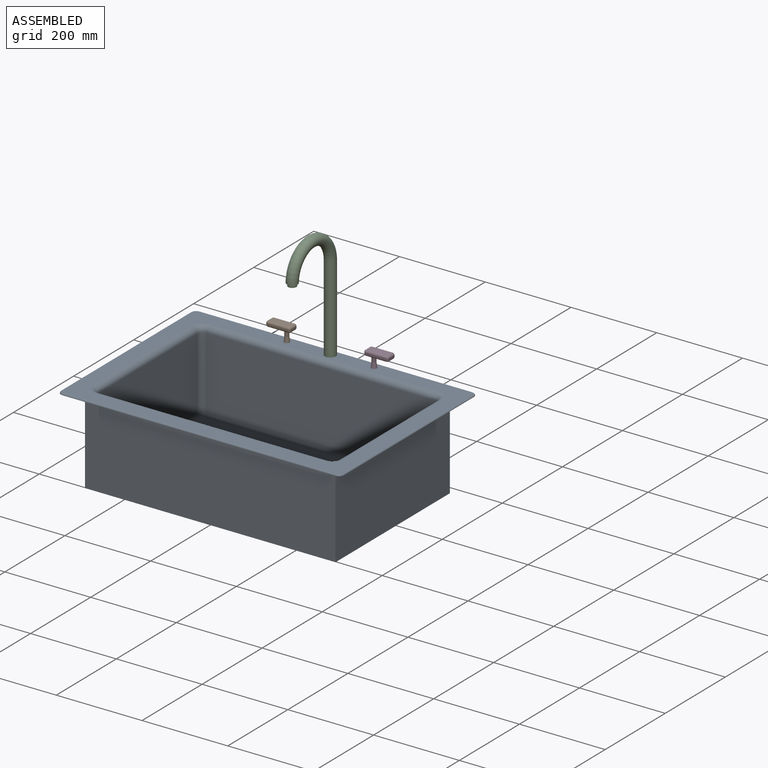
[diagram: assembled view]
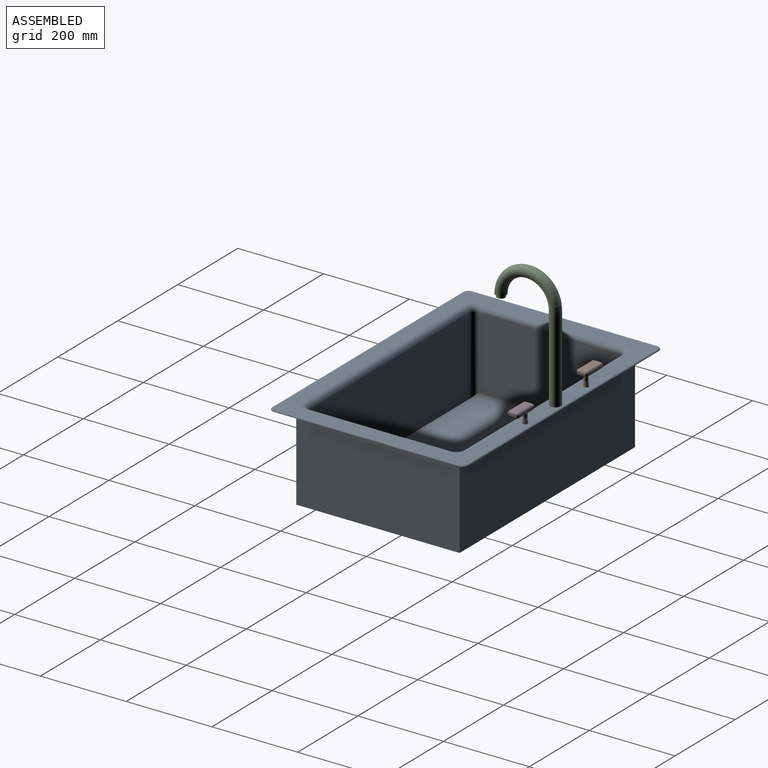
[diagram: assembled view, second angle]
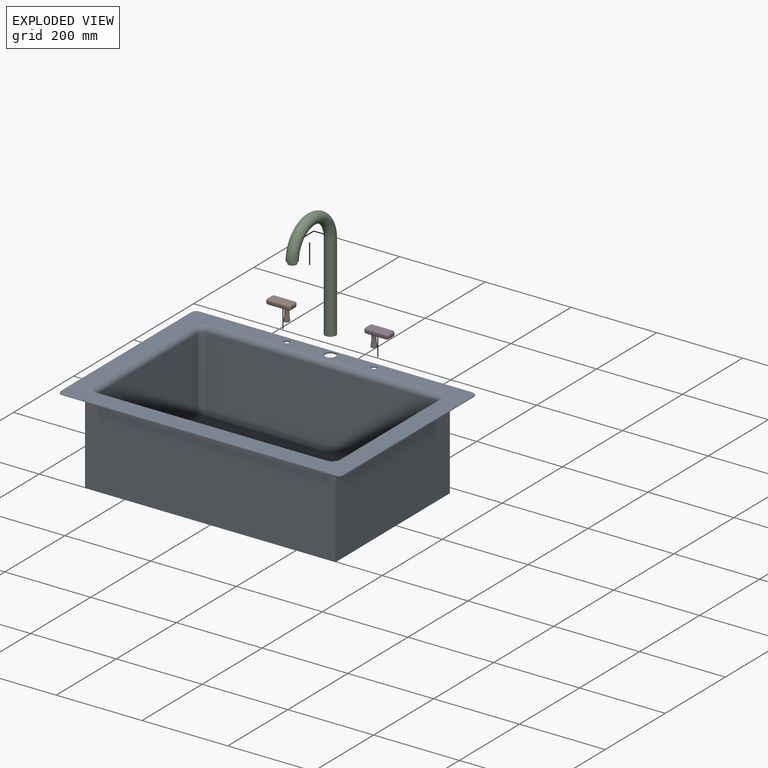
[diagram: exploded view]
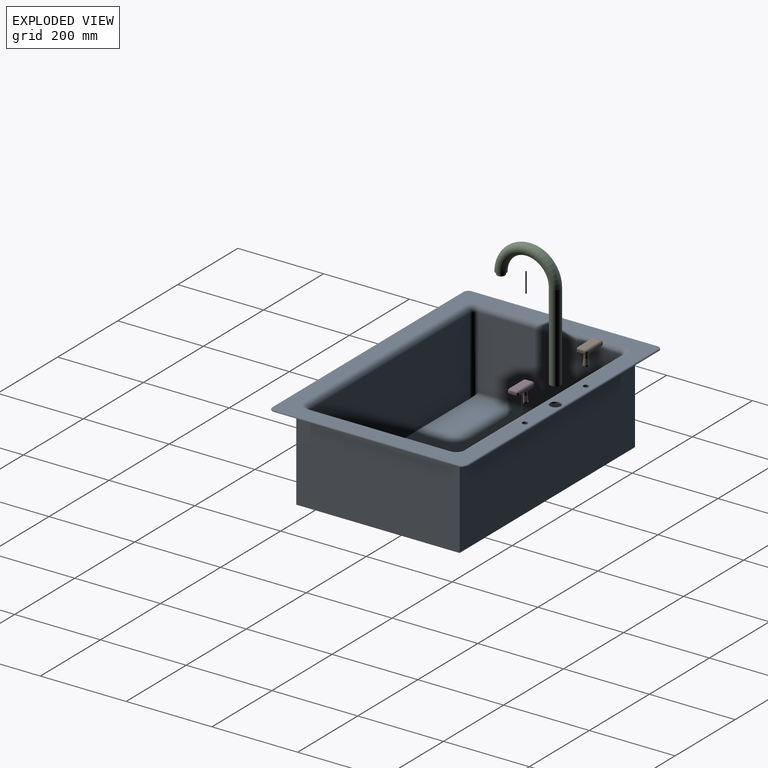
[diagram: exploded view, second angle]
ASSEMBLY  parts=4 mates=3
PART A: 41 faces, bbox 662.5x459.3x206.4 mm
  f0: plane 533.4x168.28mm, normal (0,-1,0), area 89757.9mm2, adj f18,f26,f27,f31
  f1: plane 330.2x168.28mm, normal (-1,0,0), area 55564.4mm2, adj f19,f24,f27,f28
  f2: plane 533.4x180.98mm, normal (0,1,0), area 96532.1mm2, adj f14,f15,f21,f24
  f3: plane 330.2x168.28mm, normal (1,0,0), area 55564.4mm2, adj f17,f21,f25,f26
  f4: plane 654.05x450.85mm, normal (0,0,1), area 72014.1mm2, adj f6,f7,f8,f15,f16,f17,f18,f19
  f5: plane 660.4x457.2mm, normal (0,0,-1), area 78456.2mm2, adj f6,f7,f8,f9,f10,f11,f12,f32
  f6: cylinder r=6.35mm len=12.7mm, axis (0,0,1), area 126.7mm2, adj f4,f5
  f7: cylinder r=12.7mm len=25.4mm, axis (0,0,1), area 253.4mm2, adj f4,f5
  f8: cylinder r=6.35mm len=12.7mm, axis (0,0,1), area 126.7mm2, adj f4,f5
  f9: plane 381x203.2mm, normal (1,0,0), area 77419.2mm2, adj f5,f10,f12,f13
  f10: plane 584.2x203.2mm, normal (0,-1,0), area 118709.4mm2, adj f5,f9,f11,f13
  f11: plane 381x203.2mm, normal (-1,0,0), area 77419.2mm2, adj f5,f10,f12,f13
  f12: plane 584.2x203.2mm, normal (0,1,0), area 118709.4mm2, adj f5,f9,f11,f13
  f13: plane 584.2x381mm, normal (0,0,-1), area 220553.4mm2, adj f9,f10,f11,f12,f40
  f14: plane 533.4x342.9mm, normal (0,0,1), area 180876mm2, adj f2,f25,f28,f31,f40
  f15: cylinder r=12.7mm len=533.4mm, axis (1,0,0), area 10640.9mm2, adj f2,f4,f16,f20
  f16: torus R=25.4mm, axis (0,0,1), area 542.6mm2, adj f4,f15,f17,f21
  f17: cylinder r=12.7mm len=330.2mm, axis (0,-1,0), area 6587.2mm2, adj f3,f4,f16,f22
  f18: cylinder r=12.7mm len=533.4mm, axis (-1,0,0), area 10640.9mm2, adj f0,f4,f22,f23
  f19: cylinder r=12.7mm len=330.2mm, axis (0,1,0), area 6587.2mm2, adj f1,f4,f20,f23
  f20: torus R=25.4mm, axis (0,0,1), area 542.6mm2, adj f4,f15,f19,f24
  f21: cylinder r=12.7mm len=180.98mm, axis (0,0,-1), area 3518.2mm2, adj f2,f3,f16,f25
  f22: torus R=25.4mm, axis (0,0,1), area 542.6mm2, adj f4,f17,f18,f26
  f23: torus R=25.4mm, axis (0,0,1), area 542.6mm2, adj f4,f18,f19,f27
  f24: cylinder r=12.7mm len=180.98mm, axis (0,0,1), area 3518.2mm2, adj f1,f2,f20,f28
  f25: cylinder r=12.7mm len=342.9mm, axis (0,1,0), area 6748.5mm2, adj f3,f14,f21,f29
  f26: cylinder r=12.7mm len=168.28mm, axis (0,0,1), area 3356.9mm2, adj f0,f3,f22,f29
  f27: cylinder r=12.7mm len=168.28mm, axis (0,0,-1), area 3356.9mm2, adj f0,f1,f23,f30
  f28: cylinder r=12.7mm len=342.9mm, axis (0,-1,0), area 6748.5mm2, adj f1,f14,f24,f30
  f29: sphere r=12.7mm, area 253.4mm2, adj f25,f26,f31
  f30: sphere r=12.7mm, area 253.4mm2, adj f27,f28,f31
  f31: cylinder r=12.7mm len=533.4mm, axis (-1,0,0), area 10640.9mm2, adj f0,f14,f29,f30
  f32: torus R=9.53mm, axis (0,0,1), area 90.5mm2, adj f4,f5,f33,f34
  f33: cylinder r=3.17mm len=635mm, axis (-1,0,0), area 3166.9mm2, adj f4,f5,f32,f35
  f34: cylinder r=3.17mm len=431.8mm, axis (0,1,0), area 2153.5mm2, adj f4,f5,f32,f36
  f35: torus R=9.53mm, axis (0,0,1), area 90.5mm2, adj f4,f5,f33,f37
  f36: torus R=9.53mm, axis (0,0,1), area 90.5mm2, adj f4,f5,f34,f38
  f37: cylinder r=3.17mm len=431.8mm, axis (0,-1,0), area 2153.5mm2, adj f4,f5,f35,f39
  f38: cylinder r=3.17mm len=635mm, axis (1,0,0), area 3166.9mm2, adj f4,f5,f36,f39
  f39: torus R=9.53mm, axis (0,0,1), area 90.5mm2, adj f4,f5,f37,f38
  f40: cylinder r=25.4mm len=50.8mm, axis (0,0,1), area 2026.8mm2, adj f13,f14
PART B: 30 faces, bbox 57.2x25.4x41.3 mm
  f0: cylinder r=4.83mm len=12.7mm, axis (0,0,-1), area 385.1mm2, adj f1,f9
  f1: cone r=4.83mm half-angle=6.8deg, axis (0,0,-1), area 449.1mm2, adj f0,f2
  f2: cylinder r=6.35mm len=12.7mm, axis (0,0,1), area 126.7mm2, adj f1,f3
  f3: plane 12.7x12.7mm, normal (0,0,-1), area 126.7mm2, adj f2
  f4: plane 15.75x3.05mm, normal (1,0,0), area 48mm2, adj f18,f23,f26,f29
  f5: plane 47.5x3.05mm, normal (0,1,0), area 144.8mm2, adj f15,f24,f25,f29
  f6: plane 15.75x3.05mm, normal (-1,0,0), area 48mm2, adj f10,f14,f15,f16
  f7: plane 47.5x3.05mm, normal (0,-1,0), area 144.8mm2, adj f10,f13,f17,f18
  f8: plane 47.5x15.75mm, normal (0,0,1), area 748mm2, adj f13,f14,f23,f24
  f9: plane 47.5x15.75mm, normal (0,0,-1), area 674.8mm2, adj f0,f16,f17,f25,f26
  f10: cylinder r=4.83mm len=4.83mm, axis (0,0,1), area 23.1mm2, adj f6,f7,f11,f12
  f11: sphere r=4.83mm, area 36.6mm2, adj f10,f13,f14
  f12: sphere r=4.83mm, area 36.6mm2, adj f10,f16,f17
  f13: cylinder r=4.83mm len=47.5mm, axis (-1,0,0), area 360.1mm2, adj f7,f8,f11,f19
  f14: cylinder r=4.83mm len=15.75mm, axis (0,1,0), area 119.4mm2, adj f6,f8,f11,f20
  f15: cylinder r=4.83mm len=4.83mm, axis (0,0,-1), area 23.1mm2, adj f5,f6,f20,f21
  f16: cylinder r=4.83mm len=15.75mm, axis (0,-1,0), area 119.4mm2, adj f6,f9,f12,f21
  f17: cylinder r=4.83mm len=47.5mm, axis (1,0,0), area 360.1mm2, adj f7,f9,f12,f22
  f18: cylinder r=4.83mm len=4.83mm, axis (0,0,-1), area 23.1mm2, adj f4,f7,f19,f22
  f19: sphere r=4.83mm, area 36.6mm2, adj f13,f18,f23
  f20: sphere r=4.83mm, area 36.6mm2, adj f14,f15,f24
  f21: sphere r=4.83mm, area 36.6mm2, adj f15,f16,f25
  f22: sphere r=4.83mm, area 36.6mm2, adj f17,f18,f26
  f23: cylinder r=4.83mm len=15.75mm, axis (0,-1,0), area 119.4mm2, adj f4,f8,f19,f27
  f24: cylinder r=4.83mm len=47.5mm, axis (1,0,0), area 360.1mm2, adj f5,f8,f20,f27
  f25: cylinder r=4.83mm len=47.5mm, axis (-1,0,0), area 360.1mm2, adj f5,f9,f21,f28
  f26: cylinder r=4.83mm len=15.75mm, axis (0,1,0), area 119.4mm2, adj f4,f9,f22,f28
  f27: sphere r=4.83mm, area 36.6mm2, adj f23,f24,f29
  f28: sphere r=4.83mm, area 36.6mm2, adj f25,f26,f29
  f29: cylinder r=4.83mm len=4.83mm, axis (0,0,1), area 23.1mm2, adj f4,f5,f27,f28
PART C: 6 faces, bbox 25.4x165x285.7 mm
  f0: plane 25.4x25.4mm, normal (0,0,-1), area 506.7mm2, adj f3
  f1: plane 25.4x25.4mm, normal (0,0,-1), area 221.7mm2, adj f2,f4
  f2: torus R=63.5mm, axis (1,0,0), area 15918.7mm2, adj f1,f3
  f3: cylinder r=12.7mm len=203.2mm, axis (0,0,-1), area 16214.6mm2, adj f0,f2
  f4: cylinder r=9.53mm len=19.05mm, axis (0,0,1), area 380mm2, adj f1,f5
  f5: plane 19.05x19.05mm, normal (0,0,-1), area 285mm2, adj f4
PART D: same geometry as B
PLACE A t=(17.72,-36.18,30.39)mm
PLACE B t=(-83.88,173.37,33.57)mm
PLACE C t=(5.02,173.37,131.99)mm
PLACE D rot(axis=(0,0,1),180deg) t=(119.32,173.37,33.57)mm
MATE planar B.f0 <-> A.f8  axis (0,0,-1) through (-83.88,173.37,30.39)mm
MATE planar D.f0 <-> A.f6  axis (0,0,1) through (119.32,173.37,30.39)mm
MATE planar C.f3 <-> A.f7  axis (0,0,-1) through (17.72,173.37,30.39)mm
